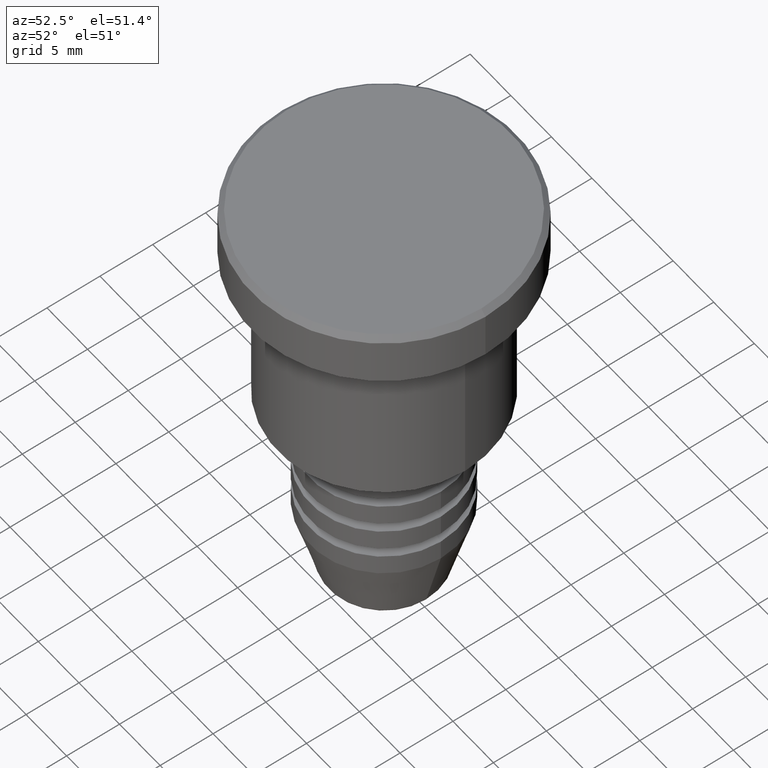
[diagram: clean part render]
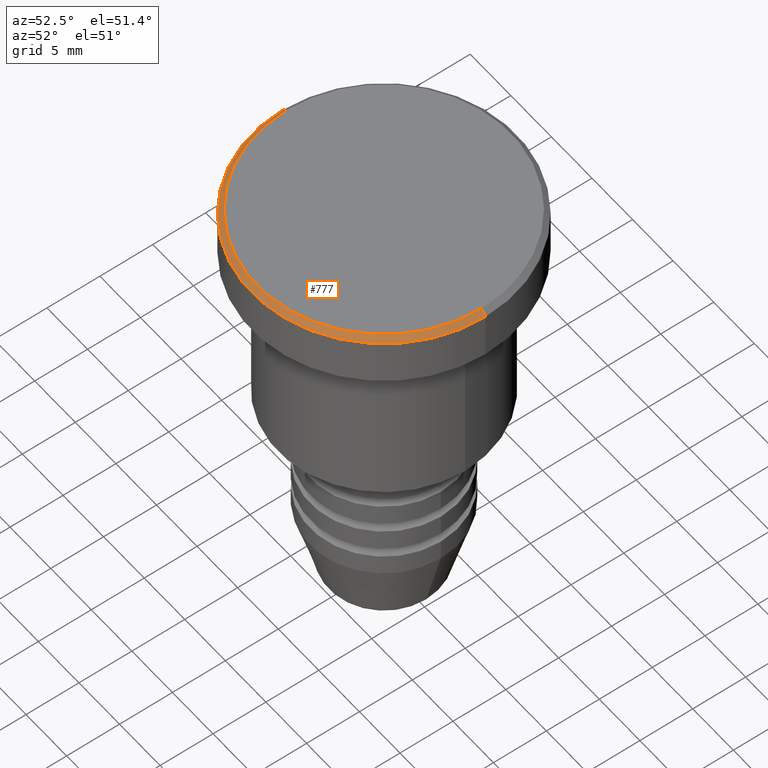
[diagram: same view with one face highlighted and labeled with its STEP entity id]
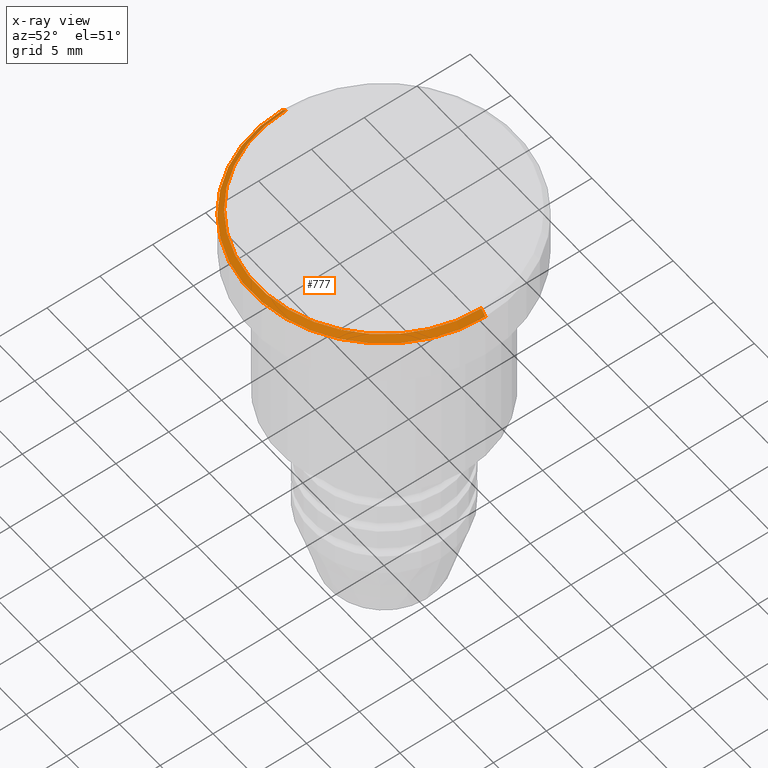
[diagram: x-ray of the same camera — body ghosted, the highlighted face saturated]
A machine part, auxiliary view. The second image highlights one B-rep face of the part: STEP entity #777.
The next image is the same camera in x-ray: the body ghosted, the highlighted face saturated — about 0% of this face is hidden behind the body in this view.
In plain terms, the highlighted conical surface has half-angle 45 deg.
Its self-contained STEP definition (entity closure, byte-faithful):
#19 = EDGE_CURVE ( 'NONE', #929, #1100, #186, .T. ) ;
#38 = ORIENTED_EDGE ( 'NONE', *, *, #19, .F. ) ;
#55 = DIRECTION ( 'NONE',  ( 1.000000000000000000, 0.000000000000000000, 0.000000000000000000 ) ) ;
#76 = CARTESIAN_POINT ( 'NONE',  ( -11.99999999999998224, 0.000000000000000000, 0.000000000000000000 ) ) ;
#95 = AXIS2_PLACEMENT_3D ( 'NONE', #1075, #880, #145 ) ;
#108 = CARTESIAN_POINT ( 'NONE',  ( 11.99999999999998224, 1.500192328955506748E-15, 0.000000000000000000 ) ) ;
#145 = DIRECTION ( 'NONE',  ( -1.000000000000000000, 0.000000000000000000, 0.000000000000000000 ) ) ;
#153 = EDGE_LOOP ( 'NONE', ( #38, #944, #593, #420 ) ) ;
#158 = CARTESIAN_POINT ( 'NONE',  ( -12.50000000000000000, 1.530808498934191521E-15, -0.5000000000000125455 ) ) ;
#185 = CARTESIAN_POINT ( 'NONE',  ( -11.99999999999998224, 0.000000000000000000, 0.000000000000000000 ) ) ;
#186 = LINE ( 'NONE', #747, #291 ) ;
#220 = DIRECTION ( 'NONE',  ( 0.000000000000000000, 0.000000000000000000, -1.000000000000000000 ) ) ;
#279 = EDGE_CURVE ( 'NONE', #379, #929, #625, .T. ) ;
#291 = VECTOR ( 'NONE', #1022, 1000.000000000000000 ) ;
#312 = DIRECTION ( 'NONE',  ( 1.000000000000000000, 0.000000000000000000, 0.000000000000000000 ) ) ;
#323 = VERTEX_POINT ( 'NONE', #158 ) ;
#345 = LINE ( 'NONE', #76, #914 ) ;
#359 = DIRECTION ( 'NONE',  ( -0.000000000000000000, -0.000000000000000000, 1.000000000000000000 ) ) ;
#379 = VERTEX_POINT ( 'NONE', #185 ) ;
#420 = ORIENTED_EDGE ( 'NONE', *, *, #1038, .F. ) ;
#444 = CONICAL_SURFACE ( 'NONE', #95, 11.99999999999998224, 0.7853981633974533860 ) ;
#515 = DIRECTION ( 'NONE',  ( -0.7071067811865512365, 0.000000000000000000, -0.7071067811865439090 ) ) ;
#530 = CARTESIAN_POINT ( 'NONE',  ( 12.50000000000000000, 0.000000000000000000, -0.5000000000000125455 ) ) ;
#593 = ORIENTED_EDGE ( 'NONE', *, *, #680, .T. ) ;
#625 = CIRCLE ( 'NONE', #706, 11.99999999999998224 ) ;
#680 = EDGE_CURVE ( 'NONE', #379, #323, #345, .T. ) ;
#706 = AXIS2_PLACEMENT_3D ( 'NONE', #1082, #359, #55 ) ;
#747 = CARTESIAN_POINT ( 'NONE',  ( 11.99999999999998224, 1.469576158976821778E-15, 0.000000000000000000 ) ) ;
#777 = ADVANCED_FACE ( 'NONE', ( #976 ), #444, .T. ) ;
#880 = DIRECTION ( 'NONE',  ( 0.000000000000000000, 0.000000000000000000, -1.000000000000000000 ) ) ;
#914 = VECTOR ( 'NONE', #515, 1000.000000000000000 ) ;
#929 = VERTEX_POINT ( 'NONE', #108 ) ;
#939 = CARTESIAN_POINT ( 'NONE',  ( 0.000000000000000000, 0.000000000000000000, -0.5000000000000125455 ) ) ;
#944 = ORIENTED_EDGE ( 'NONE', *, *, #279, .F. ) ;
#958 = AXIS2_PLACEMENT_3D ( 'NONE', #939, #220, #312 ) ;
#976 = FACE_OUTER_BOUND ( 'NONE', #153, .T. ) ;
#1022 = DIRECTION ( 'NONE',  ( 0.7071067811865512365, 8.659560562354978464E-17, -0.7071067811865439090 ) ) ;
#1038 = EDGE_CURVE ( 'NONE', #1100, #323, #1070, .T. ) ;
#1070 = CIRCLE ( 'NONE', #958, 12.50000000000000000 ) ;
#1075 = CARTESIAN_POINT ( 'NONE',  ( 0.000000000000000000, 0.000000000000000000, 0.000000000000000000 ) ) ;
#1082 = CARTESIAN_POINT ( 'NONE',  ( 0.000000000000000000, 0.000000000000000000, 0.000000000000000000 ) ) ;
#1100 = VERTEX_POINT ( 'NONE', #530 ) ;